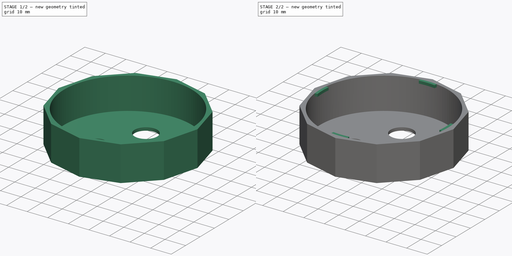
[diagram: build sequence overview — one tinted view per stage of 2, left to right]
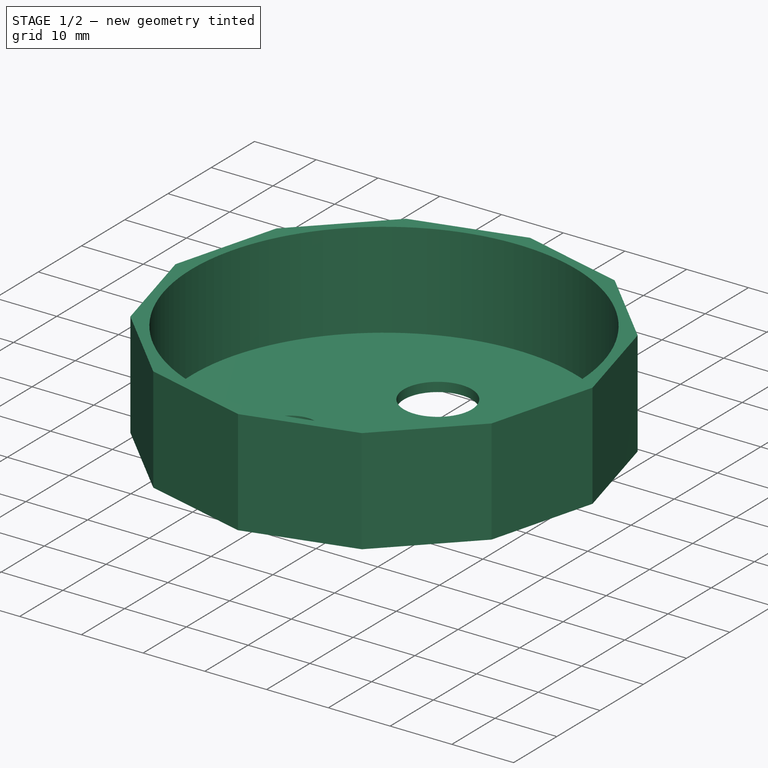
[diagram: stage 1 of 2 — iso view after this stage's code; geometry added in this stage tinted green]
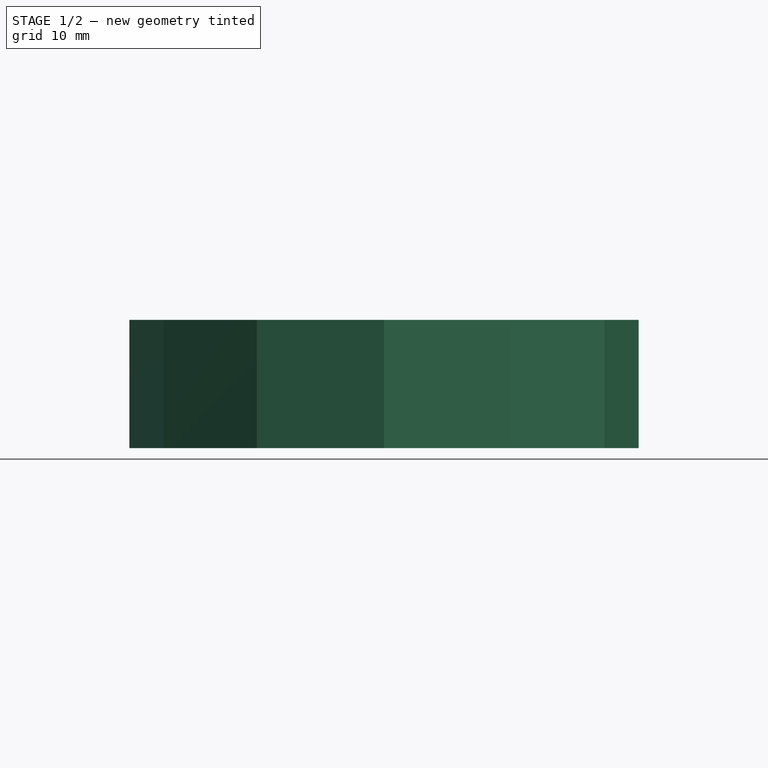
[diagram: stage 1 of 2 — front view after this stage's code; geometry added in this stage tinted green]
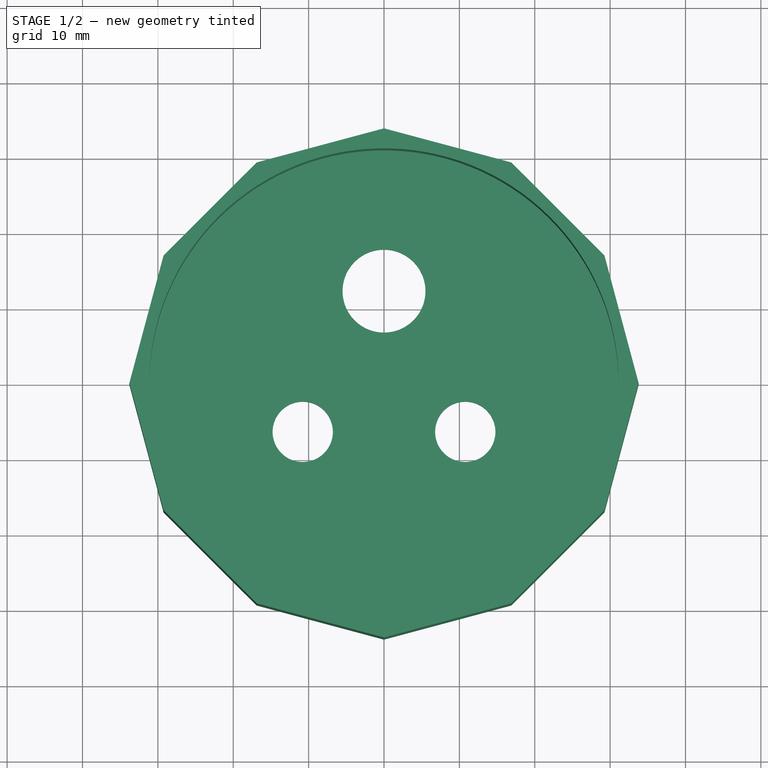
[diagram: stage 1 of 2 — top view after this stage's code; geometry added in this stage tinted green]
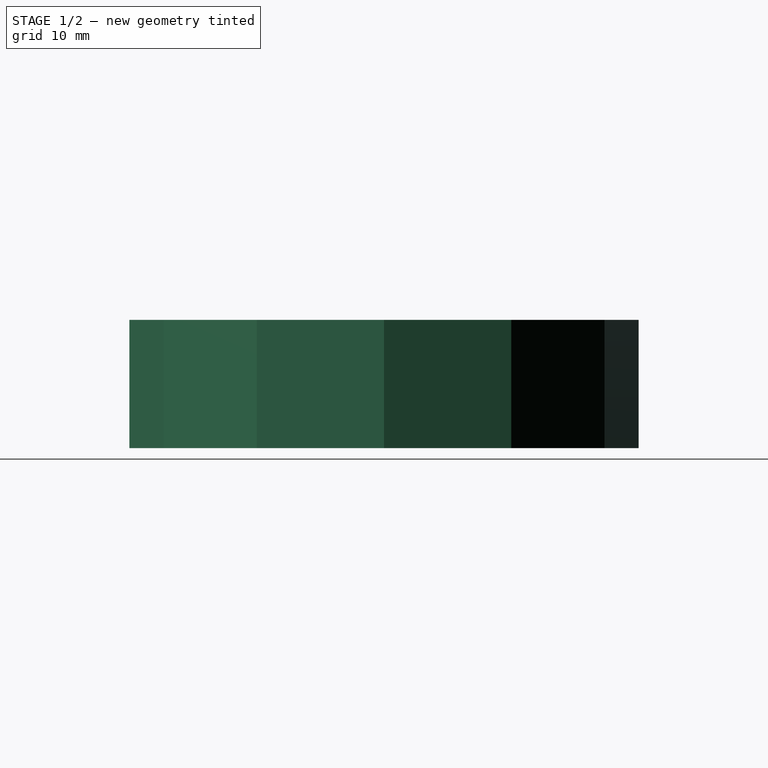
[diagram: stage 1 of 2 — right view after this stage's code; geometry added in this stage tinted green]
FCSTD DOCUMENT  (FreeCAD 2023.131R26244 +5365 (Git))
Label: Mason Jar Mycology Lid - Flanged
License: All rights reserved
LicenseURL: http://en.wikipedia.org/wiki/All_rights_reserved
objects: Sketcher::SketchObject×3, Spreadsheet::Sheet×2, PartDesign::Pad×2, PartDesign::Hole×1, PartDesign::PolarPattern×1, PartDesign::Body×1
note: 19 computed .brp shape members not serialized (recipe doc carries the construction recipe); baked Part::Feature solids carry a one-line shape summary decoded from their .brp

FEATURE [Spreadsheet::Sheet] Spreadsheet  label="Parameters"
  PythonMode = false
  ShowCells = 0
  TreeRank = 1
  cells = A2=Ring Inner Diameter; B2(Ring_Inner_Diameter)=62.25; C2=Should be large enough to fit over the threads on the glass jar.; A3=Ring Min Thickness; B3(Ring_Min_Thickness)=1.5; C3=The thickness of the thinnest part of the ring.; A4=Ring Side Height; B4(Ring_Side_Height)=15.5; C4=How much material will screw onto the jar.; A5=Ring Top Height; B5(Ring_Top_Height)=1.5; C5=How thick the lid is on top of the jar.; A7=Flange Height; B7(Flange_Height)=1.3; C7=The height of the threads from the inner survace of the lid.; A8=Flange Length; B8(Flange_Length)=8; C8=The linear length of each flange.; A9=Flange Count; B9(Flange_Count)=4; C9=The number of flanges to create; A11=Hole Layout; B11(Hole_Layout)=Triangle; C11=Enter either Line or Triangle; B12=Diameter; C12=Offset from Origin; D12=Angle From Horizontal; A13=Middle Hole; B13(Middle_Hole_Diameter)=11; C13(Middle_Hole_Offset)==B11 == <<Line>> ? 0 : B2 / 5; A14=Left Hole; B14(Left_Hole_Diameter)=8; C14(Left_Hole_Offset)==B11 == <<Line>> ? (B2 / 2 - B13 / 2) / 2 + B13 / 2 : B2 / 5; D14(Left_Hole_Angle)==B11 == <<Line>> ? 90 : 60; A15=Right Hole; B15(Right_Hole_Diameter)=8; C15(Right_Hole_Offset)==B11 == <<Line>> ? (B2 / 2 - B13 / 2) / 2 + B13 / 2 : B2 / 5; D15(Right_Hole_Angle)==B11 == <<Line>> ? 90 : 60
FEATURE [Sketcher::SketchObject] Sketch
  ArcFitTolerance = 1e-06
  AttachmentSupport = -> [XY_Plane]
  ExternalBSplineMaxDegree = 5
  ExternalBSplineTolerance = 0.0001
  FullyConstrained = true
  InternalTolerance = 1e-06
  InvalidShape = false
  MakeInternals = false
  MapMode = 5
  Support = -> [XY_Plane]
  TreeRank = 14
  ValidateShape = true
  expr: Constraints[37] = <<Parameters>>.Ring_Inner_Diameter + <<Parameters>>.Ring_Min_Thickness * 2
  expr: Constraints[40] = <<Parameters>>.Middle_Hole_Diameter
  expr: Constraints[41] = <<Parameters>>.Left_Hole_Diameter
  expr: Constraints[42] = <<Parameters>>.Right_Hole_Diameter
  expr: Constraints[44] = <<Parameters>>.Middle_Hole_Offset
  expr: Constraints[46] = <<Parameters>>.Left_Hole_Offset
  expr: Constraints[47] = 180 - <<Parameters>>.Left_Hole_Angle
  expr: Constraints[50] = <<Parameters>>.Right_Hole_Offset
  expr: Constraints[52] = 180 - <<Parameters>>.Right_Hole_Angle
  sketch-geometry (19):
    g0: LineSegment StartX=-29.2508 StartY=16.8879 StartZ=0 EndX=-33.7759 EndY=0 EndZ=0
    g1: LineSegment StartX=-33.7759 StartY=0 StartZ=0 EndX=-29.2508 EndY=-16.8879 EndZ=0
    g2: LineSegment StartX=-29.2508 StartY=-16.8879 StartZ=0 EndX=-16.8879 EndY=-29.2508 EndZ=0
    g3: LineSegment StartX=-16.8879 StartY=-29.2508 StartZ=0 EndX=7.1e-15 EndY=-33.7759 EndZ=0
    g4: LineSegment StartX=5.9e-15 StartY=-33.7759 StartZ=0 EndX=16.8879 EndY=-29.2508 EndZ=0
    g5: LineSegment StartX=16.8879 StartY=-29.2508 StartZ=0 EndX=29.2508 EndY=-16.8879 EndZ=0
    g6: LineSegment StartX=29.2508 StartY=-16.8879 StartZ=0 EndX=33.7759 EndY=3.6e-15 EndZ=0
    g7: LineSegment StartX=33.7759 StartY=3e-15 StartZ=0 EndX=29.2508 EndY=16.8879 EndZ=0
    g8: LineSegment StartX=29.2508 StartY=16.8879 StartZ=0 EndX=16.8879 EndY=29.2508 EndZ=0
    g9: LineSegment StartX=16.8879 StartY=29.2508 StartZ=0 EndX=-3.6e-15 EndY=33.7759 EndZ=0
    g10: LineSegment StartX=-4.1e-15 StartY=33.7759 StartZ=0 EndX=-16.8879 EndY=29.2508 EndZ=0
    g11: LineSegment StartX=-16.8879 StartY=29.2508 StartZ=0 EndX=-29.2508 EndY=16.8879 EndZ=0
    g12: Circle [constr] CenterX=0 CenterY=0 CenterZ=0 NormalX=0 NormalY=0 NormalZ=1 AngleXU=0 Radius=33.7759
    g13: Circle [constr] CenterX=0 CenterY=0 CenterZ=0 NormalX=0 NormalY=0 NormalZ=1 AngleXU=0 Radius=32.625
    g14: Circle CenterX=0 CenterY=12.45 CenterZ=0 NormalX=0 NormalY=0 NormalZ=1 AngleXU=0 Radius=5.5
    g15: Circle CenterX=10.782 CenterY=-6.225 CenterZ=0 NormalX=0 NormalY=0 NormalZ=1 AngleXU=0 Radius=4
    g16: Circle CenterX=-10.782 CenterY=-6.225 CenterZ=0 NormalX=0 NormalY=0 NormalZ=1 AngleXU=0 Radius=4
    g17: LineSegment [constr] StartX=0 StartY=0 StartZ=0 EndX=-10.782 EndY=-6.225 EndZ=0
    g18: LineSegment [constr] StartX=0 StartY=0 StartZ=0 EndX=10.782 EndY=-6.225 EndZ=0
  constraints (43):
    c: Coincident(g0,g1)
    c: Coincident(g1,g2)
    c: Coincident(g2,g3)
    c: Coincident(g3,g4)
    c: Coincident(g4,g5)
    c: Coincident(g5,g6)
    c: Coincident(g6,g7)
    c: Coincident(g7,g8)
    c: Coincident(g8,g9)
    c: Coincident(g9,g10)
    c: Coincident(g10,g11)
    c: Coincident(g11,g0)
    c: Equal(g0, g1-g11) x11
    c: PointOnObject(g0,g12)
    c: PointOnObject(g1,g12)
    c: PointOnObject(g2,g12)
    c: PointOnObject(g3,g12)
    c: PointOnObject(g4,g12)
    c: PointOnObject(g5,g12)
    c: PointOnObject(g6,g12)
    c: PointOnObject(g7,g12)
    c: PointOnObject(g8,g12)
    c: PointOnObject(g9,g12)
    c: PointOnObject(g10,g12)
    c: PointOnObject(g11,g12)
    c: Coincident(g12,g-1)
    c: Coincident(g13,g12)
    c: Diameter(g13) = 65.25
    c: Tangent(g13,g9)
    c: PointOnObject(g0,g-1)
    c: Diameter(g14) = 11
    c: Diameter(g16) = 8
    c: Diameter(g15) = 8
    c: PointOnObject(g14,g-2)
    c: DistanceY(g12,g14) = 12.45
    c: Coincident(g17,g12)
    c: Distance(g17,g12) = 12.45
    c: Angle(g-2,g17) = 2.0944
    c: Coincident(g16,g17)
    c: Coincident(g18,g12)
    c: Distance(g12,g18) = 12.45
    c: Coincident(g15,g18)
    c: Angle(g18,g-2) = 2.0944
FEATURE [PartDesign::Pad] Pad  label="Lid"
  AddSubType = 0
  AlongSketchNormal = false
  AutoTaperInnerAngle = true
  CheckUpToFaceLimits = true
  ClaimChildren = false
  Direction = (0,0,1)
  Fit = 0
  FitJoin = 0
  InnerFit = 0
  InnerFitJoin = 0
  InvalidShape = false
  Length = 17
  Length2 = 100
  Linearize = true
  NewSolid = false
  Profile = -> Sketch
  Suppress = false
  TaperInnerAngle = 0
  TaperInnerAngleRev = 0
  TreeRank = 15
  Type = 0
  ValidateShape = true
  _ProfileBasedVersion = 1
  expr: Length = <<Parameters>>.Ring_Side_Height + <<Parameters>>.Ring_Top_Height
FEATURE [Sketcher::SketchObject] Sketch001  label="Hole"
  ArcFitTolerance = 1e-06
  AttachmentSupport = -> [Pad]
  ExternalBSplineMaxDegree = 5
  ExternalBSplineTolerance = 0.0001
  FullyConstrained = true
  InternalTolerance = 1e-06
  InvalidShape = false
  MakeInternals = false
  MapMode = 5
  Placement = pos=(0,0,17) rot=(0,0,1;0rad)
  Support = -> [Pad]
  TreeRank = 16
  ValidateShape = true
  expr: Constraints[1] = <<Parameters>>.Ring_Inner_Diameter
  sketch-geometry (1):
    g0: Circle CenterX=0 CenterY=0 CenterZ=0 NormalX=0 NormalY=0 NormalZ=1 AngleXU=0 Radius=31.125
  constraints (2):
    c: Coincident(g0,g-1)
    c: Diameter(g0) = 62.25
FEATURE [PartDesign::Hole] Hole  label="Bottle Opening"
  AddSubType = 1
  BaseFeature = -> Pad
  ClaimChildren = false
  CustomThreadClearance = 0
  Depth = 15.5
  DepthType = 0
  Diameter = 62.25
  DrillForDepth = false
  DrillPoint = 0
  DrillPointAngle = 118
  Fit = 0
  FitJoin = 0
  HoleCutCountersinkAngle = 90
  HoleCutCustomValues = false
  HoleCutDepth = 0
  HoleCutDiameter = 6.1
  HoleCutType = 0
  InnerFit = 0
  InnerFitJoin = 0
  InvalidShape = false
  Linearize = true
  ModelThread = false
  NewSolid = false
  Profile = -> Sketch001
  Suppress = false
  Tapered = false
  TaperedAngle = 90
  ThreadClass = 0
  ThreadDepth = 15.5
  ThreadDepthType = 0
  ThreadDirection = 0
  ThreadFit = 0
  ThreadSize = 0
  ThreadType = 0
  Threaded = false
  TreeRank = 17
  UseCustomThreadClearance = false
  ValidateShape = true
  _ProfileBasedVersion = 1
  expr: Depth = <<Parameters>>.Ring_Side_Height
  expr: Diameter = <<Parameters>>.Ring_Inner_Diameter
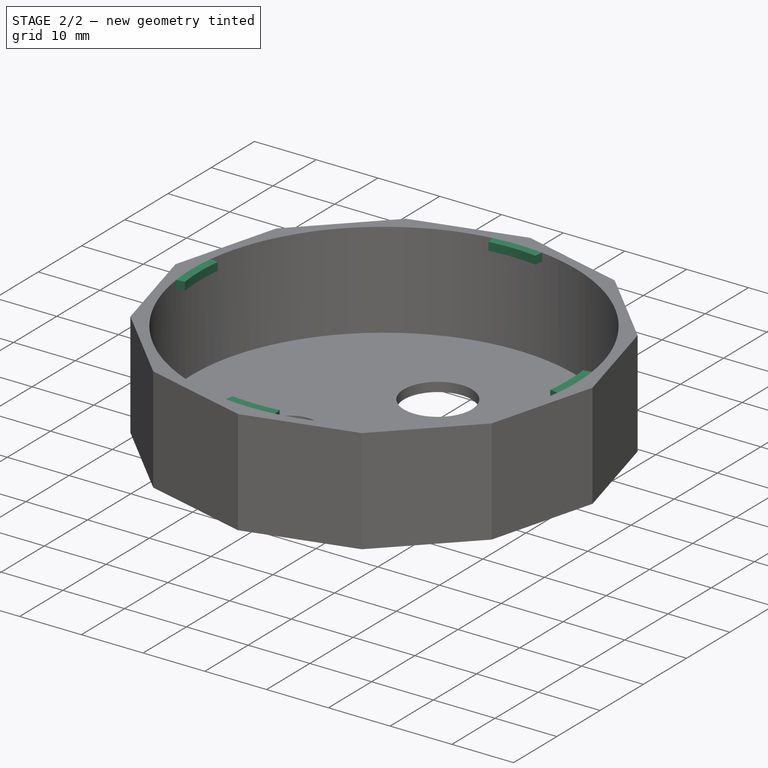
[diagram: stage 2 of 2 — iso view after this stage's code; geometry added in this stage tinted green]
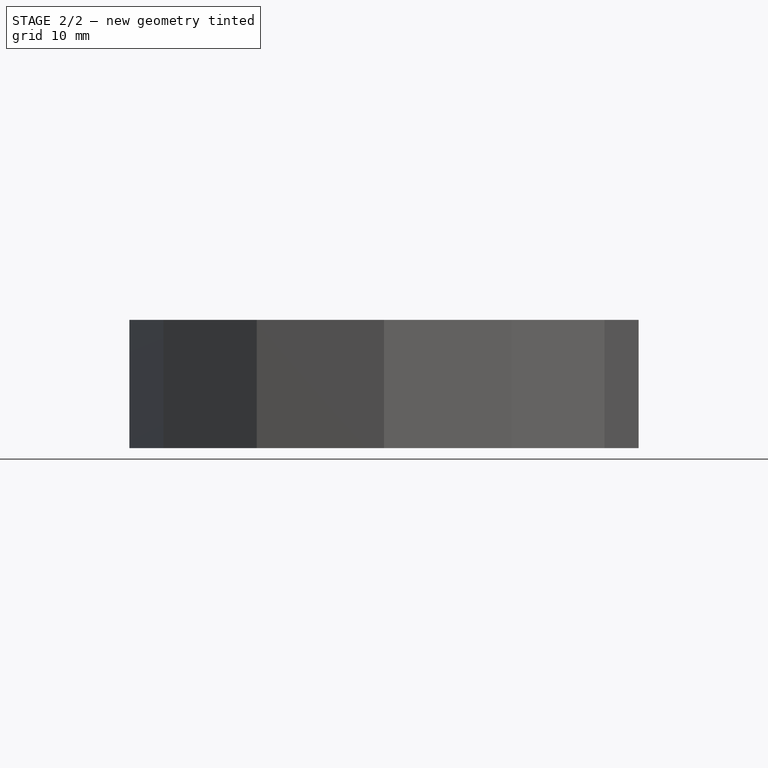
[diagram: stage 2 of 2 — front view after this stage's code; geometry added in this stage tinted green]
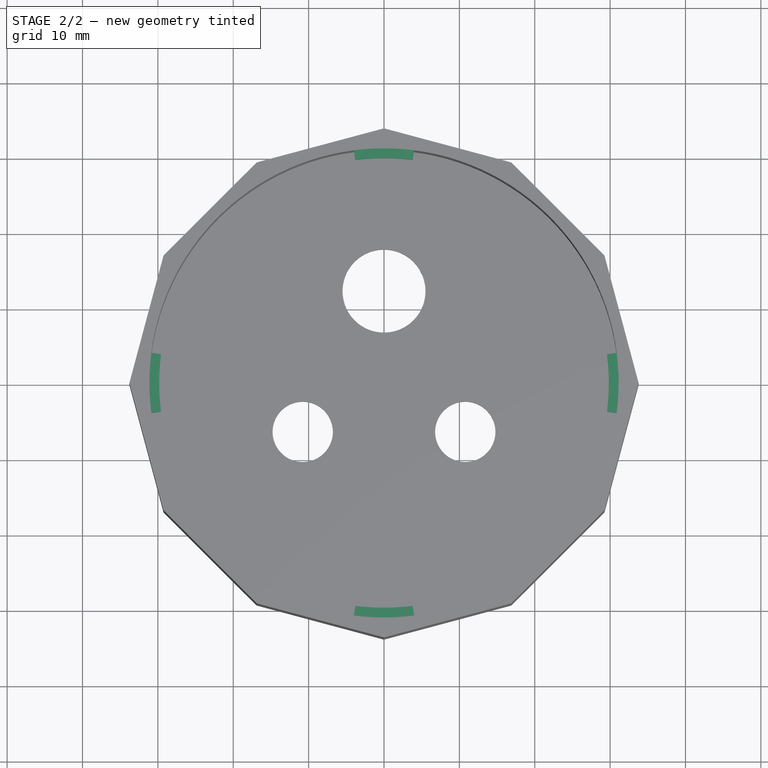
[diagram: stage 2 of 2 — top view after this stage's code; geometry added in this stage tinted green]
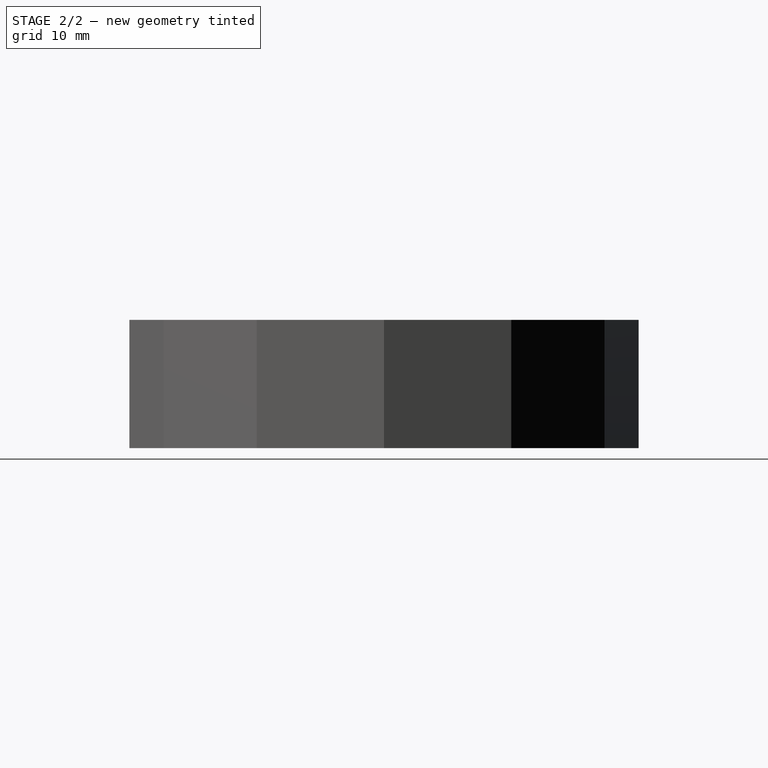
[diagram: stage 2 of 2 — right view after this stage's code; geometry added in this stage tinted green]
FEATURE [Spreadsheet::Sheet] Spreadsheet001  label="Bootle Specs"
  PythonMode = false
  ShowCells = 0
  TreeRank = 2
  cells = B2=Inner Ring Diameter; C2=Ring Side Height; D2=Flanges; A3=24oz Prego Jar; B3=62.25; C3=10.5; D3=4; A4=Mt. Olive 1 Gallon Jar; B4==99mm; C4==15mm; D4=6
FEATURE [Sketcher::SketchObject] Sketch002  label="Flange Sketch"
  ArcFitTolerance = 1e-06
  AttachmentSupport = -> [Hole]
  ExternalBSplineMaxDegree = 5
  ExternalBSplineTolerance = 0.0001
  FullyConstrained = true
  InternalTolerance = 1e-06
  InvalidShape = false
  MakeInternals = false
  MapMode = 5
  Placement = pos=(0,0,17) rot=(0,0,1;0rad)
  Support = -> [Hole]
  TreeRank = 18
  ValidateShape = true
  expr: Constraints[10] = Spreadsheet.Flange_Length / 2 * 0.95
  expr: Constraints[11] = Spreadsheet.Flange_Length / 2 * 0.95
  expr: Constraints[1] = <<Parameters>>.Ring_Inner_Diameter
  expr: Constraints[3] = <<Parameters>>.Ring_Inner_Diameter - Spreadsheet.Flange_Height * 2
  expr: Constraints[6] = Spreadsheet.Flange_Length / 2
  expr: Constraints[7] = Spreadsheet.Flange_Length / 2
  sketch-geometry (6):
    g0: Circle [constr] CenterX=0 CenterY=0 CenterZ=0 NormalX=0 NormalY=0 NormalZ=1 AngleXU=0 Radius=31.125
    g1: Circle [constr] CenterX=0 CenterY=0 CenterZ=0 NormalX=0 NormalY=0 NormalZ=1 AngleXU=0 Radius=29.825
    g2: ArcOfCircle CenterX=0 CenterY=0 CenterZ=0 NormalX=0 NormalY=0 NormalZ=1 AngleXU=0 Radius=31.125 StartAngle=3.01272 EndAngle=3.27046
    g3: ArcOfCircle CenterX=0 CenterY=0 CenterZ=0 NormalX=0 NormalY=0 NormalZ=1 AngleXU=0 Radius=29.825 StartAngle=3.01384 EndAngle=3.26935
    g4: LineSegment StartX=-30.8669 StartY=-4 StartZ=0 EndX=-29.5819 EndY=-3.8 EndZ=0
    g5: LineSegment StartX=-30.8669 StartY=4 StartZ=0 EndX=-29.5819 EndY=3.8 EndZ=0
  constraints (16):
    c: Coincident(g0,g-1)
    c: Diameter(g0) = 62.25
    c: Coincident(g1,g0)
    c: Diameter(g1) = 59.65
    c: Coincident(g2,g0)
    c: PointOnObject(g2,g0)
    c: DistanceY(g2,g2) = 4
    c: DistanceY(g2,g2) = 4
    c: Coincident(g3,g2)
    c: PointOnObject(g3,g1)
    c: DistanceY(g2,g3) = 3.8
    c: DistanceY(g3,g2) = 3.8
    c: Coincident(g4,g2)
    c: Coincident(g4,g3)
    c: Coincident(g5,g2)
    c: Coincident(g5,g3)
FEATURE [PartDesign::Pad] Pad001  label="Flanges"
  AddSubType = 0
  AlongSketchNormal = false
  AutoTaperInnerAngle = true
  BaseFeature = -> Hole
  CheckUpToFaceLimits = true
  ClaimChildren = false
  Direction = (0,0,1)
  Fit = 0
  FitJoin = 0
  InnerFit = 0
  InnerFitJoin = 0
  InvalidShape = false
  Length = 1.3
  Length2 = 100
  Linearize = true
  NewSolid = false
  Profile = -> Sketch002
  Reversed = true
  Suppress = false
  TaperInnerAngle = 0
  TaperInnerAngleRev = 0
  TreeRank = 19
  Type = 0
  ValidateShape = true
  _ProfileBasedVersion = 1
  expr: Length = Spreadsheet.Flange_Height
FEATURE [PartDesign::PolarPattern] PolarPattern
  AddSubType = 0
  Angle = 360
  Axis = -> Sketch002 [N_Axis]
  BaseFeature = -> Pad001
  CopyShape = false
  InvalidShape = false
  NewSolid = false
  Occurrences = 4
  OriginalSubs = -> [Pad001]
  Originals = -> [Pad001]
  ParallelTransform = true
  SubTransform = true
  Suppress = false
  TreeRank = 20
  ValidateShape = true
  _Version = 3
  expr: Occurrences = <<Parameters>>.Flange_Count
FEATURE [PartDesign::Body] Body  label="Jar Lid"
  AutoGroupSolids = false
  ClaimAllChildren = false
  ExportMode = 0
  Group = -> [Sketch,Pad,Sketch001,Hole,Sketch002,Pad001,PolarPattern]
  InvalidShape = false
  Origin = -> Origin
  Tip = -> PolarPattern
  TreeRank = 13
  ValidateShape = true
  _ExportChildren = -> [Pad,Hole,Pad001,PolarPattern]
  _GroupVersion = 1
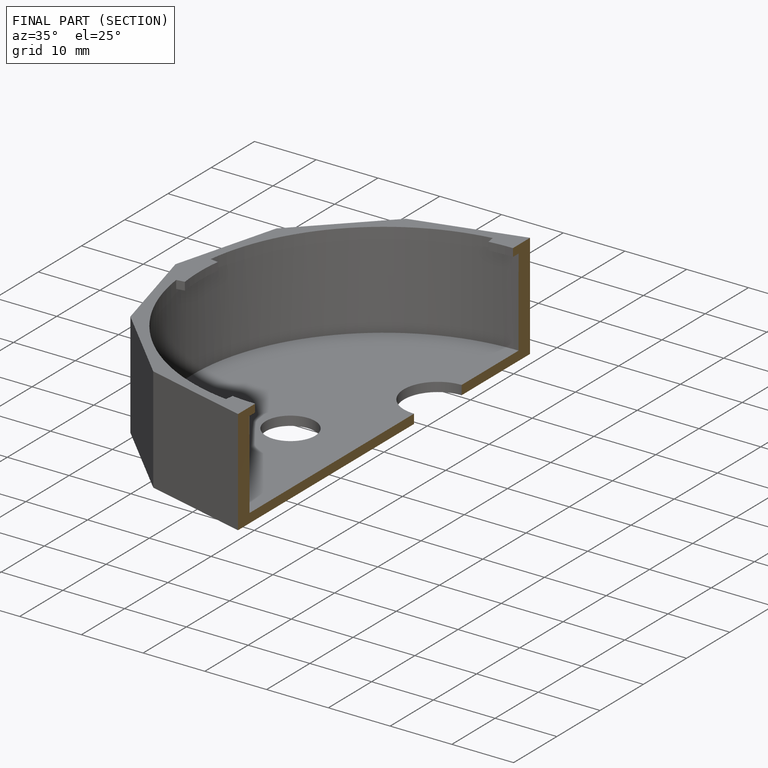
[diagram: finished part — half-section view (interior)]
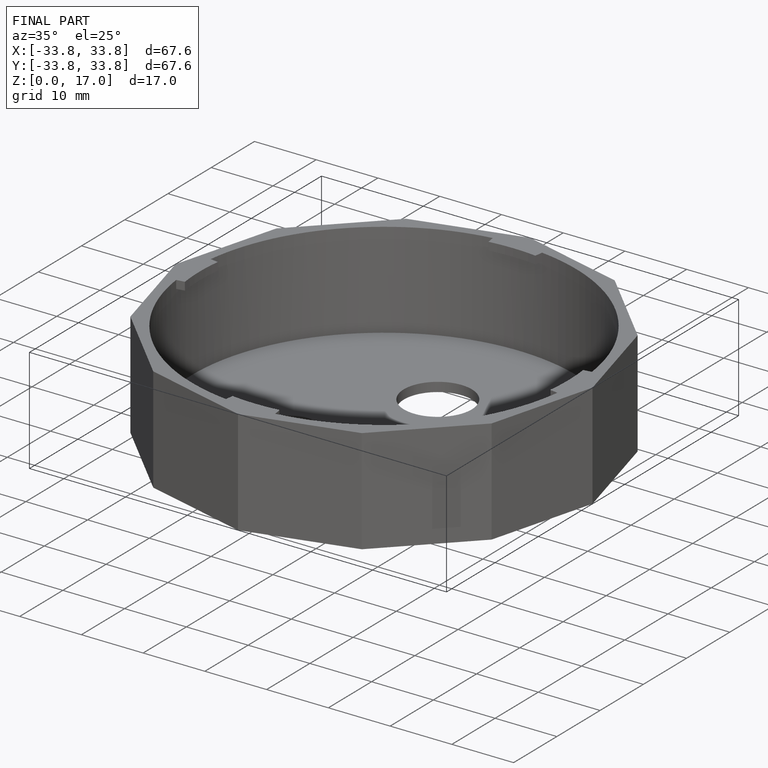
[diagram: finished part — iso view with bounding-box wireframe]
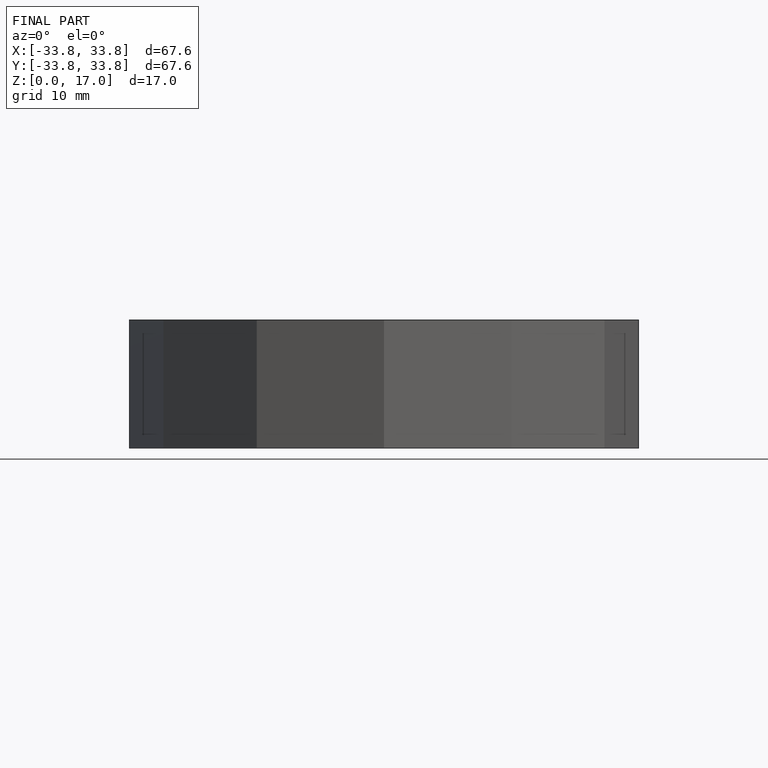
[diagram: finished part — front view with bounding-box wireframe]
